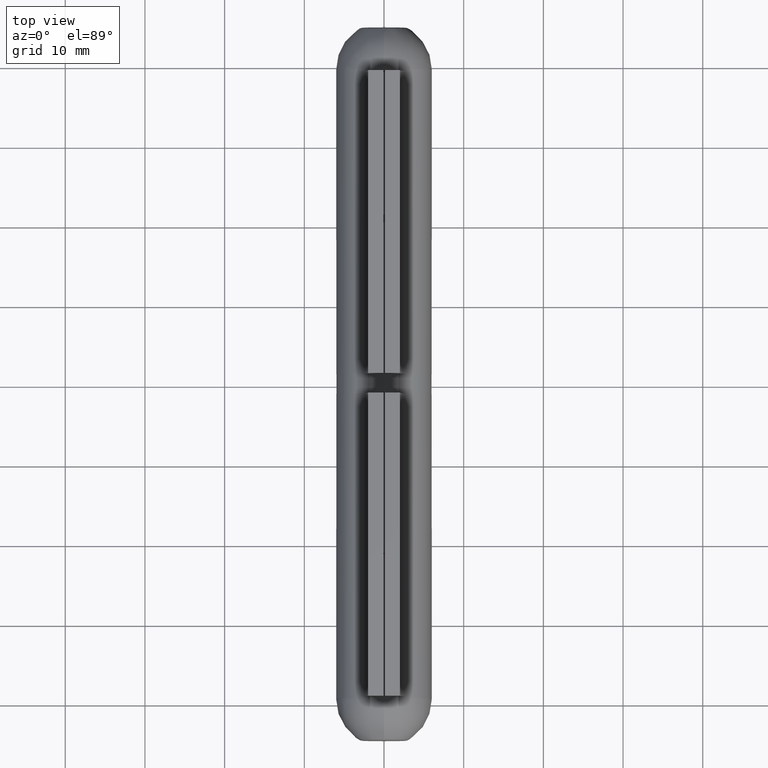
[diagram: clean part render]
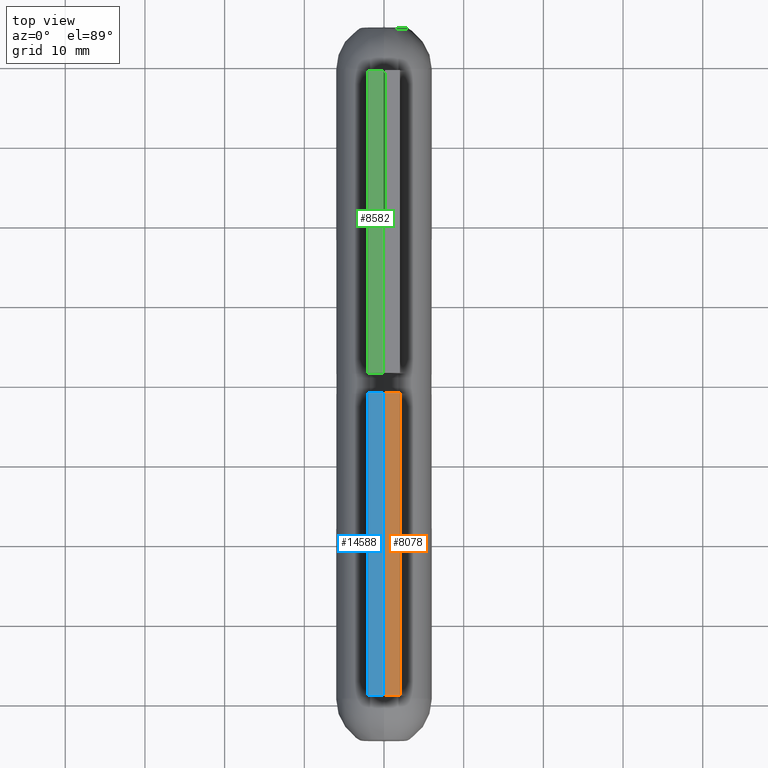
[diagram: same view with three faces highlighted in distinct colors, each labeled with its STEP entity id]
A machine part, top view with three faces highlighted in distinct colors.
Their STEP definitions:

[orange] entity #8078 — the highlighted planar face has unit normal (0, 0, -1).
#505 = DIRECTION ( 'NONE',  ( -1.000000000000000000, 0.000000000000000000, -0.000000000000000000 ) ) ;
#1219 = DIRECTION ( 'NONE',  ( 1.000000000000000000, 0.000000000000000000, 0.000000000000000000 ) ) ;
#1231 = DIRECTION ( 'NONE',  ( -0.000000000000000000, -1.000000000000000000, -0.000000000000000000 ) ) ;
#1585 = CARTESIAN_POINT ( 'NONE',  ( 0.1000000000000013517, -19.00000000000000000, 10.50000000000000000 ) ) ;
#2336 = ORIENTED_EDGE ( 'NONE', *, *, #11986, .F. ) ;
#3221 = VECTOR ( 'NONE', #1231, 1000.000000000000000 ) ;
#3484 = VECTOR ( 'NONE', #7142, 1000.000000000000000 ) ;
#3603 = CARTESIAN_POINT ( 'NONE',  ( 2.000000000000001332, 19.00000000000000000, 10.50000000000000000 ) ) ;
#3957 = VERTEX_POINT ( 'NONE', #9524 ) ;
#5689 = EDGE_LOOP ( 'NONE', ( #11339, #6554, #2336, #8518 ) ) ;
#6057 = DIRECTION ( 'NONE',  ( 0.000000000000000000, 0.000000000000000000, -1.000000000000000000 ) ) ;
#6378 = CARTESIAN_POINT ( 'NONE',  ( 2.000000000000001332, -19.00000000000000000, 10.50000000000000000 ) ) ;
#6457 = LINE ( 'NONE', #1585, #3484 ) ;
#6486 = VECTOR ( 'NONE', #14505, 1000.000000000000000 ) ;
#6554 = ORIENTED_EDGE ( 'NONE', *, *, #9053, .F. ) ;
#6814 = EDGE_CURVE ( 'NONE', #10644, #3957, #7189, .T. ) ;
#6913 = AXIS2_PLACEMENT_3D ( 'NONE', #10730, #6057, #505 ) ;
#7142 = DIRECTION ( 'NONE',  ( 1.000000000000000000, 0.000000000000000000, 0.000000000000000000 ) ) ;
#7189 = LINE ( 'NONE', #9964, #6486 ) ;
#8078 = ADVANCED_FACE ( 'NONE', ( #11633 ), #9588, .F. ) ;
#8122 = CARTESIAN_POINT ( 'NONE',  ( 0.1000000000000013517, 19.00000000000000000, 10.50000000000000000 ) ) ;
#8518 = ORIENTED_EDGE ( 'NONE', *, *, #6814, .T. ) ;
#9053 = EDGE_CURVE ( 'NONE', #14541, #11033, #9823, .T. ) ;
#9091 = VECTOR ( 'NONE', #1219, 1000.000000000000000 ) ;
#9524 = CARTESIAN_POINT ( 'NONE',  ( 0.1000000000000013517, -19.00000000000000000, 10.50000000000000000 ) ) ;
#9588 = PLANE ( 'NONE',  #6913 ) ;
#9790 = EDGE_CURVE ( 'NONE', #3957, #11033, #6457, .T. ) ;
#9823 = LINE ( 'NONE', #3603, #3221 ) ;
#9964 = CARTESIAN_POINT ( 'NONE',  ( 0.1000000000000013517, 19.00000000000000000, 10.50000000000000000 ) ) ;
#10644 = VERTEX_POINT ( 'NONE', #13029 ) ;
#10730 = CARTESIAN_POINT ( 'NONE',  ( 0.1000000000000013517, 19.00000000000000000, 10.50000000000000000 ) ) ;
#11033 = VERTEX_POINT ( 'NONE', #6378 ) ;
#11339 = ORIENTED_EDGE ( 'NONE', *, *, #9790, .T. ) ;
#11633 = FACE_OUTER_BOUND ( 'NONE', #5689, .T. ) ;
#11986 = EDGE_CURVE ( 'NONE', #10644, #14541, #12501, .T. ) ;
#12501 = LINE ( 'NONE', #8122, #9091 ) ;
#12878 = CARTESIAN_POINT ( 'NONE',  ( 2.000000000000001332, 19.00000000000000000, 10.50000000000000000 ) ) ;
#13029 = CARTESIAN_POINT ( 'NONE',  ( 0.1000000000000013517, 19.00000000000000000, 10.50000000000000000 ) ) ;
#14505 = DIRECTION ( 'NONE',  ( -0.000000000000000000, -1.000000000000000000, -0.000000000000000000 ) ) ;
#14541 = VERTEX_POINT ( 'NONE', #12878 ) ;

[blue] entity #14588 — the highlighted planar face has unit normal (0, 0, -1).
#210 = EDGE_CURVE ( 'NONE', #5183, #13821, #12247, .T. ) ;
#269 = DIRECTION ( 'NONE',  ( 1.000000000000000000, 0.000000000000000000, 0.000000000000000000 ) ) ;
#657 = DIRECTION ( 'NONE',  ( 1.000000000000000000, 0.000000000000000000, 0.000000000000000000 ) ) ;
#683 = LINE ( 'NONE', #5822, #5452 ) ;
#1476 = CARTESIAN_POINT ( 'NONE',  ( -1.999999999999998668, -19.00000000000000000, 10.50000000000000000 ) ) ;
#1740 = ORIENTED_EDGE ( 'NONE', *, *, #210, .T. ) ;
#2410 = CARTESIAN_POINT ( 'NONE',  ( -0.09999999999999874267, 19.00000000000000000, 10.50000000000000000 ) ) ;
#2546 = CARTESIAN_POINT ( 'NONE',  ( -1.999999999999998668, 19.00000000000000000, 10.50000000000000000 ) ) ;
#2576 = LINE ( 'NONE', #7308, #9434 ) ;
#2853 = VERTEX_POINT ( 'NONE', #8156 ) ;
#3541 = DIRECTION ( 'NONE',  ( -0.000000000000000000, -1.000000000000000000, -0.000000000000000000 ) ) ;
#3763 = EDGE_LOOP ( 'NONE', ( #9487, #8598, #11894, #1740 ) ) ;
#4494 = LINE ( 'NONE', #7027, #7674 ) ;
#4780 = DIRECTION ( 'NONE',  ( -1.000000000000000000, 0.000000000000000000, -0.000000000000000000 ) ) ;
#4850 = CARTESIAN_POINT ( 'NONE',  ( -1.999999999999998668, 19.00000000000000000, 10.50000000000000000 ) ) ;
#5183 = VERTEX_POINT ( 'NONE', #13960 ) ;
#5452 = VECTOR ( 'NONE', #8050, 1000.000000000000000 ) ;
#5822 = CARTESIAN_POINT ( 'NONE',  ( -0.09999999999999874267, 19.00000000000000000, 10.50000000000000000 ) ) ;
#5888 = AXIS2_PLACEMENT_3D ( 'NONE', #2546, #11594, #4780 ) ;
#5971 = EDGE_CURVE ( 'NONE', #7616, #2853, #683, .T. ) ;
#7027 = CARTESIAN_POINT ( 'NONE',  ( -1.999999999999998668, 19.00000000000000000, 10.50000000000000000 ) ) ;
#7237 = VECTOR ( 'NONE', #3541, 1000.000000000000000 ) ;
#7308 = CARTESIAN_POINT ( 'NONE',  ( -1.999999999999998668, -19.00000000000000000, 10.50000000000000000 ) ) ;
#7616 = VERTEX_POINT ( 'NONE', #2410 ) ;
#7674 = VECTOR ( 'NONE', #269, 1000.000000000000000 ) ;
#8050 = DIRECTION ( 'NONE',  ( -0.000000000000000000, -1.000000000000000000, -0.000000000000000000 ) ) ;
#8156 = CARTESIAN_POINT ( 'NONE',  ( -0.09999999999999874267, -19.00000000000000000, 10.50000000000000000 ) ) ;
#8598 = ORIENTED_EDGE ( 'NONE', *, *, #5971, .F. ) ;
#9280 = PLANE ( 'NONE',  #5888 ) ;
#9434 = VECTOR ( 'NONE', #657, 1000.000000000000000 ) ;
#9487 = ORIENTED_EDGE ( 'NONE', *, *, #12162, .T. ) ;
#11594 = DIRECTION ( 'NONE',  ( 0.000000000000000000, 0.000000000000000000, -1.000000000000000000 ) ) ;
#11894 = ORIENTED_EDGE ( 'NONE', *, *, #12051, .F. ) ;
#12051 = EDGE_CURVE ( 'NONE', #5183, #7616, #4494, .T. ) ;
#12162 = EDGE_CURVE ( 'NONE', #13821, #2853, #2576, .T. ) ;
#12247 = LINE ( 'NONE', #4850, #7237 ) ;
#13821 = VERTEX_POINT ( 'NONE', #1476 ) ;
#13960 = CARTESIAN_POINT ( 'NONE',  ( -1.999999999999998668, 19.00000000000000000, 10.50000000000000000 ) ) ;
#14052 = FACE_OUTER_BOUND ( 'NONE', #3763, .T. ) ;
#14588 = ADVANCED_FACE ( 'NONE', ( #14052 ), #9280, .F. ) ;

[green] entity #8582 — the highlighted planar face has unit normal (0, 0, -1).
#569 = ORIENTED_EDGE ( 'NONE', *, *, #6416, .T. ) ;
#1457 = VERTEX_POINT ( 'NONE', #12690 ) ;
#1965 = EDGE_CURVE ( 'NONE', #7800, #1457, #4567, .T. ) ;
#2007 = VERTEX_POINT ( 'NONE', #9211 ) ;
#2019 = LINE ( 'NONE', #4944, #2371 ) ;
#2122 = VECTOR ( 'NONE', #9120, 1000.000000000000000 ) ;
#2371 = VECTOR ( 'NONE', #2749, 1000.000000000000000 ) ;
#2434 = VECTOR ( 'NONE', #4592, 1000.000000000000000 ) ;
#2749 = DIRECTION ( 'NONE',  ( -0.000000000000000000, -1.000000000000000000, -0.000000000000000000 ) ) ;
#2878 = ORIENTED_EDGE ( 'NONE', *, *, #1965, .F. ) ;
#3152 = AXIS2_PLACEMENT_3D ( 'NONE', #5559, #6597, #4515 ) ;
#3942 = VERTEX_POINT ( 'NONE', #9629 ) ;
#4192 = EDGE_LOOP ( 'NONE', ( #569, #2878, #8852, #5252 ) ) ;
#4515 = DIRECTION ( 'NONE',  ( -1.000000000000000000, 0.000000000000000000, -0.000000000000000000 ) ) ;
#4567 = LINE ( 'NONE', #5741, #11159 ) ;
#4592 = DIRECTION ( 'NONE',  ( 1.000000000000000000, 0.000000000000000000, 0.000000000000000000 ) ) ;
#4807 = DIRECTION ( 'NONE',  ( -0.000000000000000000, -1.000000000000000000, -0.000000000000000000 ) ) ;
#4944 = CARTESIAN_POINT ( 'NONE',  ( -1.999999999999998668, 19.00000000000000000, 10.50000000000000000 ) ) ;
#5090 = LINE ( 'NONE', #7935, #2122 ) ;
#5228 = CARTESIAN_POINT ( 'NONE',  ( -0.09999999999999874267, 19.00000000000000000, 10.50000000000000000 ) ) ;
#5252 = ORIENTED_EDGE ( 'NONE', *, *, #14163, .T. ) ;
#5559 = CARTESIAN_POINT ( 'NONE',  ( -1.999999999999998668, 19.00000000000000000, 10.50000000000000000 ) ) ;
#5727 = CARTESIAN_POINT ( 'NONE',  ( -1.999999999999998668, 19.00000000000000000, 10.50000000000000000 ) ) ;
#5741 = CARTESIAN_POINT ( 'NONE',  ( -0.09999999999999874267, 19.00000000000000000, 10.50000000000000000 ) ) ;
#6265 = LINE ( 'NONE', #5727, #2434 ) ;
#6416 = EDGE_CURVE ( 'NONE', #3942, #1457, #5090, .T. ) ;
#6597 = DIRECTION ( 'NONE',  ( 0.000000000000000000, 0.000000000000000000, -1.000000000000000000 ) ) ;
#7800 = VERTEX_POINT ( 'NONE', #5228 ) ;
#7935 = CARTESIAN_POINT ( 'NONE',  ( -1.999999999999998668, -19.00000000000000000, 10.50000000000000000 ) ) ;
#8582 = ADVANCED_FACE ( 'NONE', ( #14109 ), #11178, .F. ) ;
#8852 = ORIENTED_EDGE ( 'NONE', *, *, #10346, .F. ) ;
#9120 = DIRECTION ( 'NONE',  ( 1.000000000000000000, 0.000000000000000000, 0.000000000000000000 ) ) ;
#9211 = CARTESIAN_POINT ( 'NONE',  ( -1.999999999999998668, 19.00000000000000000, 10.50000000000000000 ) ) ;
#9629 = CARTESIAN_POINT ( 'NONE',  ( -1.999999999999998668, -19.00000000000000000, 10.50000000000000000 ) ) ;
#10346 = EDGE_CURVE ( 'NONE', #2007, #7800, #6265, .T. ) ;
#11159 = VECTOR ( 'NONE', #4807, 1000.000000000000000 ) ;
#11178 = PLANE ( 'NONE',  #3152 ) ;
#12690 = CARTESIAN_POINT ( 'NONE',  ( -0.09999999999999874267, -19.00000000000000000, 10.50000000000000000 ) ) ;
#14109 = FACE_OUTER_BOUND ( 'NONE', #4192, .T. ) ;
#14163 = EDGE_CURVE ( 'NONE', #2007, #3942, #2019, .T. ) ;